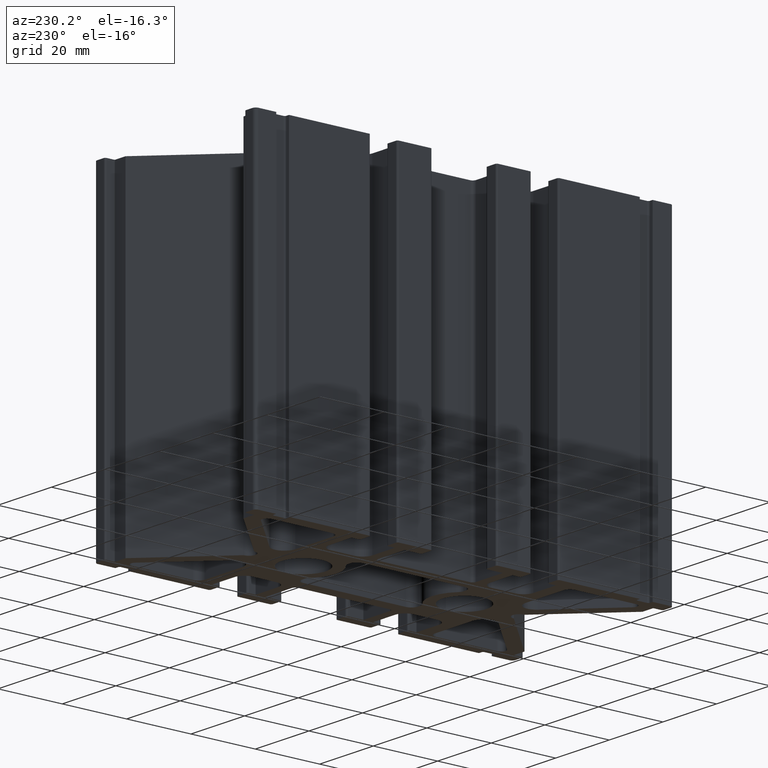
[diagram: clean part render]
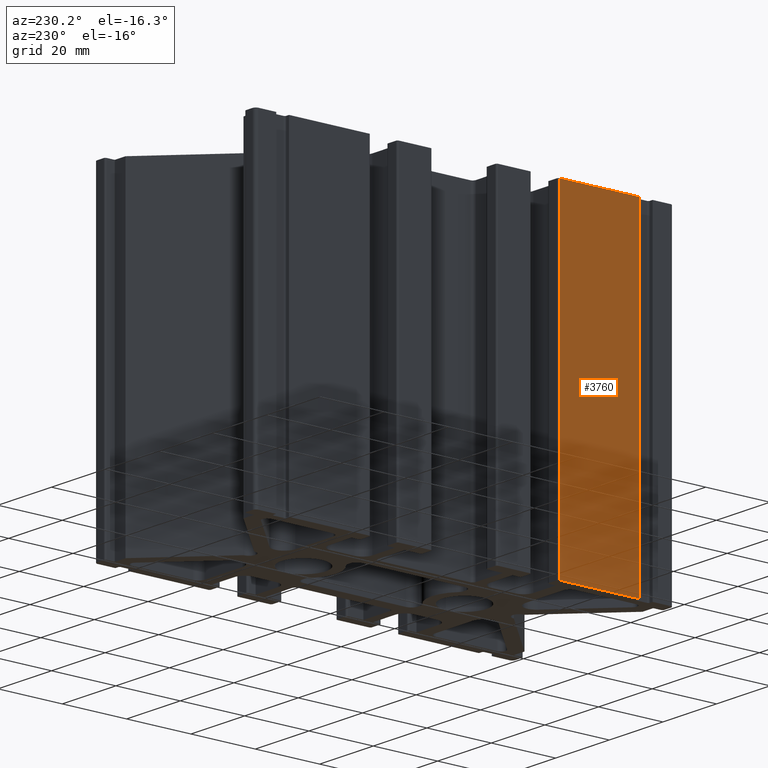
[diagram: same view with one face highlighted and labeled with its STEP entity id]
A machine part, auxiliary view. The second image highlights one B-rep face of the part: STEP entity #3760.
In plain terms, the highlighted planar face has unit normal (-1, 0, 0).
Its self-contained STEP definition (entity closure, byte-faithful):
#115=PLANE('',#4116);
#288=FACE_OUTER_BOUND('',#483,.T.);
#483=EDGE_LOOP('',(#3199,#3200,#3201,#3202));
#833=LINE('',#5738,#1231);
#1028=LINE('',#6239,#1426);
#1029=LINE('',#6242,#1427);
#1030=LINE('',#6243,#1428);
#1231=VECTOR('',#4580,10.);
#1426=VECTOR('',#5103,10.);
#1427=VECTOR('',#5106,10.);
#1428=VECTOR('',#5107,10.);
#1676=VERTEX_POINT('',#5735);
#1677=VERTEX_POINT('',#5737);
#1819=VERTEX_POINT('',#6237);
#1820=VERTEX_POINT('',#6241);
#2090=EDGE_CURVE('',#1676,#1677,#833,.T.);
#2341=EDGE_CURVE('',#1676,#1819,#1028,.T.);
#2342=EDGE_CURVE('',#1820,#1819,#1029,.T.);
#2343=EDGE_CURVE('',#1677,#1820,#1030,.T.);
#3199=ORIENTED_EDGE('',*,*,#2341,.T.);
#3200=ORIENTED_EDGE('',*,*,#2342,.F.);
#3201=ORIENTED_EDGE('',*,*,#2343,.F.);
#3202=ORIENTED_EDGE('',*,*,#2090,.F.);
#3760=ADVANCED_FACE('',(#288),#115,.T.);
#4116=AXIS2_PLACEMENT_3D('',#6240,#5104,#5105);
#4580=DIRECTION('',(0.,1.,0.));
#5103=DIRECTION('',(0.,0.,1.));
#5104=DIRECTION('center_axis',(-1.,0.,0.));
#5105=DIRECTION('ref_axis',(0.,-1.,0.));
#5106=DIRECTION('',(0.,-1.,0.));
#5107=DIRECTION('',(0.,0.,1.));
#5735=CARTESIAN_POINT('',(-30.0000000000036,-54.4999999999997,-50.));
#5737=CARTESIAN_POINT('',(-30.0000000000036,-29.6499999999997,-50.));
#5738=CARTESIAN_POINT('',(-30.0000000000036,-29.6499999999997,-50.));
#6237=CARTESIAN_POINT('',(-30.0000000000036,-54.4999999999997,50.));
#6239=CARTESIAN_POINT('',(-30.0000000000036,-54.4999999999997,0.));
#6240=CARTESIAN_POINT('Origin',(-30.0000000000036,-29.6499999999997,0.));
#6241=CARTESIAN_POINT('',(-30.0000000000036,-29.6499999999997,50.));
#6242=CARTESIAN_POINT('',(-30.0000000000036,-29.6499999999997,50.));
#6243=CARTESIAN_POINT('',(-30.0000000000036,-29.6499999999997,0.));